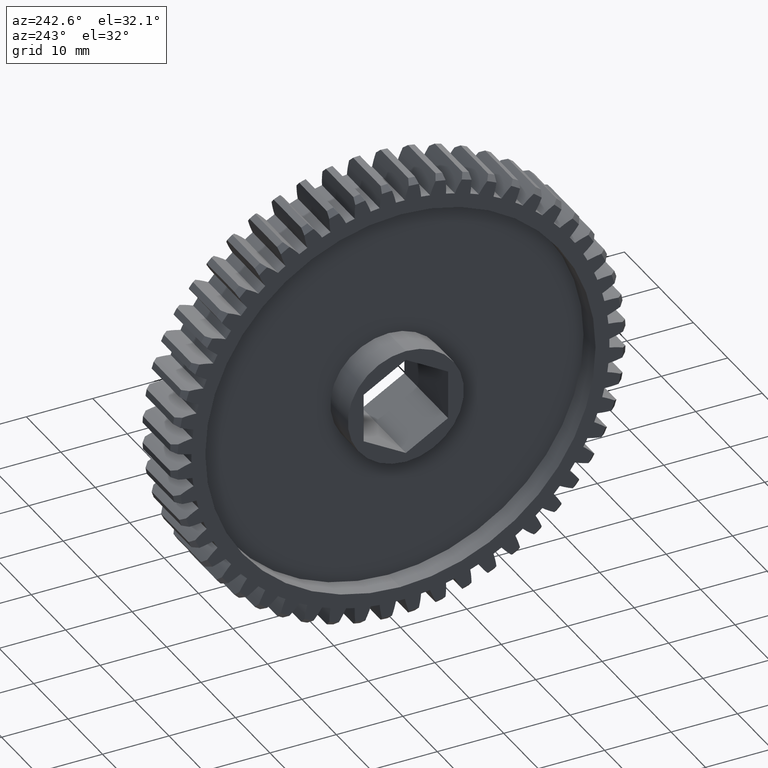
[diagram: clean part render]
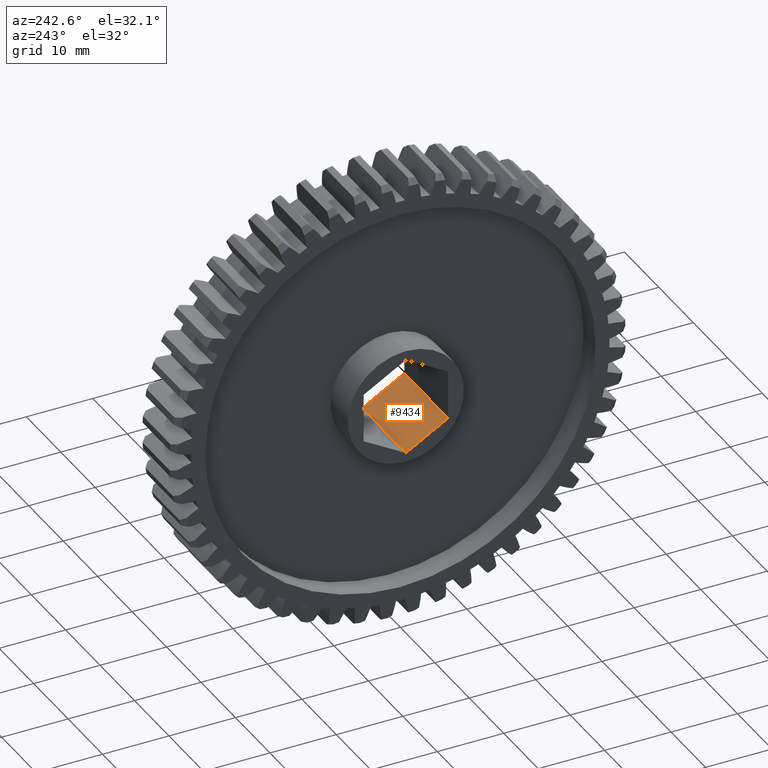
[diagram: same view with one face highlighted and labeled with its STEP entity id]
A machine part, auxiliary view. The second image highlights one B-rep face of the part: STEP entity #9434.
In plain terms, the highlighted planar face has unit normal (0, -0.5, -0.866).
Its self-contained STEP definition (entity closure, byte-faithful):
#919 = PLANE ( 'NONE',  #1425 ) ;
#1291 = ORIENTED_EDGE ( 'NONE', *, *, #6867, .T. ) ;
#1425 = AXIS2_PLACEMENT_3D ( 'NONE', #6346, #7247, #10906 ) ;
#1873 = CARTESIAN_POINT ( 'NONE',  ( -0.06250000000000001388, 9.326636531699003467E-17, -0.2886751345948129210 ) ) ;
#1959 = EDGE_CURVE ( 'NONE', #5291, #4542, #8691, .T. ) ;
#2297 = DIRECTION ( 'NONE',  ( 1.000000000000000000, -0.0000000000000000000, -0.0000000000000000000 ) ) ;
#3154 = LINE ( 'NONE', #8190, #4641 ) ;
#3547 = CARTESIAN_POINT ( 'NONE',  ( -0.06250000000000001388, -0.2500000000000000000, -0.1443375672974064605 ) ) ;
#3772 = CARTESIAN_POINT ( 'NONE',  ( 0.4375000000000000555, 1.024442997624098707E-16, -0.2886751345948129210 ) ) ;
#4248 = VERTEX_POINT ( 'NONE', #7874 ) ;
#4389 = CARTESIAN_POINT ( 'NONE',  ( -0.06250000000000001388, -0.2500000000000000000, -0.1443375672974064605 ) ) ;
#4542 = VERTEX_POINT ( 'NONE', #1873 ) ;
#4641 = VECTOR ( 'NONE', #5857, 39.37007874015748854 ) ;
#4652 = EDGE_CURVE ( 'NONE', #4248, #6344, #3154, .T. ) ;
#4770 = EDGE_LOOP ( 'NONE', ( #11827, #9124, #11247, #1291 ) ) ;
#5291 = VERTEX_POINT ( 'NONE', #4389 ) ;
#5463 = FACE_OUTER_BOUND ( 'NONE', #4770, .T. ) ;
#5857 = DIRECTION ( 'NONE',  ( 0.0000000000000000000, 0.8660254037844385966, -0.4999999999999998335 ) ) ;
#5919 = LINE ( 'NONE', #10536, #6871 ) ;
#5985 = CARTESIAN_POINT ( 'NONE',  ( -0.06250000000000001388, -0.2500000000000000000, -0.1443375672974064605 ) ) ;
#6344 = VERTEX_POINT ( 'NONE', #3772 ) ;
#6346 = CARTESIAN_POINT ( 'NONE',  ( -0.06250000000000001388, -0.2500000000000000000, -0.1443375672974064605 ) ) ;
#6867 = EDGE_CURVE ( 'NONE', #5291, #4248, #10855, .T. ) ;
#6871 = VECTOR ( 'NONE', #8535, 39.37007874015748143 ) ;
#7247 = DIRECTION ( 'NONE',  ( 0.0000000000000000000, -0.4999999999999998335, -0.8660254037844388186 ) ) ;
#7562 = EDGE_CURVE ( 'NONE', #4542, #6344, #5919, .T. ) ;
#7601 = VECTOR ( 'NONE', #2297, 39.37007874015748143 ) ;
#7874 = CARTESIAN_POINT ( 'NONE',  ( 0.4375000000000000555, -0.2500000000000000000, -0.1443375672974064605 ) ) ;
#8190 = CARTESIAN_POINT ( 'NONE',  ( 0.4375000000000000555, -0.2500000000000000000, -0.1443375672974064605 ) ) ;
#8535 = DIRECTION ( 'NONE',  ( 1.000000000000000000, -0.0000000000000000000, -0.0000000000000000000 ) ) ;
#8691 = LINE ( 'NONE', #5985, #11710 ) ;
#9124 = ORIENTED_EDGE ( 'NONE', *, *, #7562, .F. ) ;
#9434 = ADVANCED_FACE ( 'NONE', ( #5463 ), #919, .F. ) ;
#9660 = DIRECTION ( 'NONE',  ( 0.0000000000000000000, 0.8660254037844385966, -0.4999999999999998335 ) ) ;
#10536 = CARTESIAN_POINT ( 'NONE',  ( -0.06250000000000001388, 9.326636531699003467E-17, -0.2886751345948129210 ) ) ;
#10855 = LINE ( 'NONE', #3547, #7601 ) ;
#10906 = DIRECTION ( 'NONE',  ( 0.0000000000000000000, 0.8660254037844388186, -0.4999999999999998335 ) ) ;
#11247 = ORIENTED_EDGE ( 'NONE', *, *, #1959, .F. ) ;
#11710 = VECTOR ( 'NONE', #9660, 39.37007874015748854 ) ;
#11827 = ORIENTED_EDGE ( 'NONE', *, *, #4652, .T. ) ;